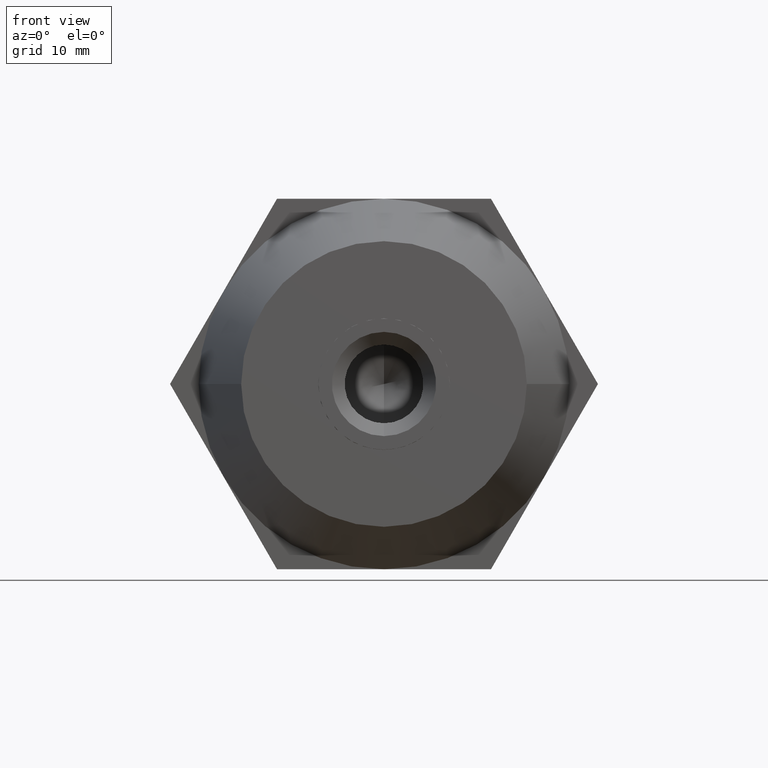
[diagram: clean part render]
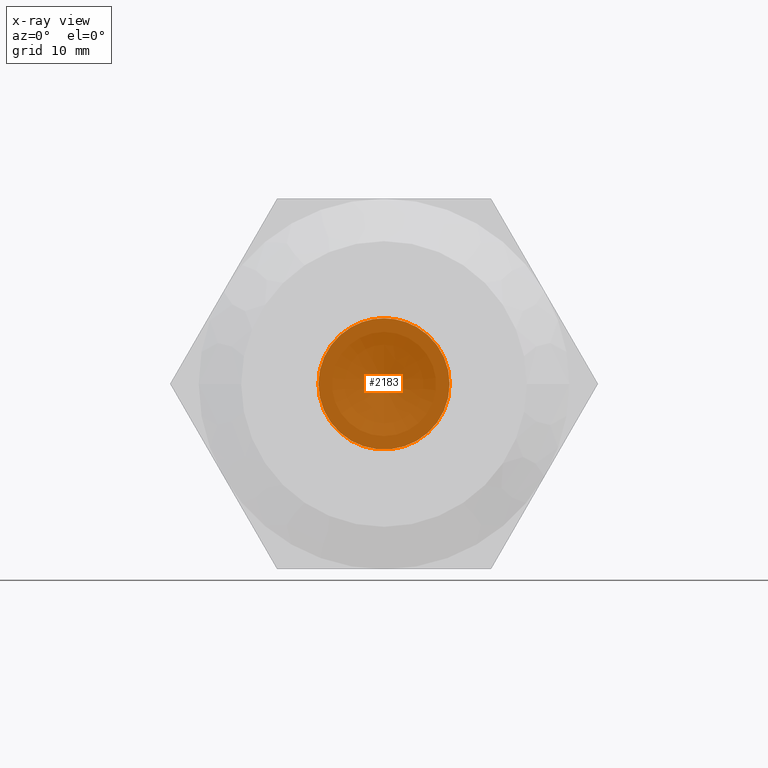
[diagram: x-ray — body ghosted, one internal face saturated and labeled with its STEP entity id]
A machine part, front view, then the same camera in x-ray: the body is ghosted and one INTERNAL B-rep face — a face not visible from any outside direction — is saturated and labeled: STEP entity #2183.
In plain terms, the highlighted planar face has unit normal (0, 1, 0).
Its self-contained STEP definition (entity closure, byte-faithful):
#3 = EDGE_CURVE ( 'NONE', #842, #3585, #1939, .T. ) ;
#88 = AXIS2_PLACEMENT_3D ( 'NONE', #3088, #1177, #666 ) ;
#100 = ORIENTED_EDGE ( 'NONE', *, *, #807, .F. ) ;
#162 = AXIS2_PLACEMENT_3D ( 'NONE', #3568, #1111, #559 ) ;
#193 = EDGE_LOOP ( 'NONE', ( #3871, #2736, #100, #368, #912, #3910, #2493 ) ) ;
#202 = EDGE_CURVE ( 'NONE', #274, #1601, #759, .T. ) ;
#274 = VERTEX_POINT ( 'NONE', #2925 ) ;
#331 = CIRCLE ( 'NONE', #2382, 8.500000000000000000 ) ;
#334 = DIRECTION ( 'NONE',  ( 0.0000000000000000000, 0.0000000000000000000, 1.000000000000000000 ) ) ;
#368 = ORIENTED_EDGE ( 'NONE', *, *, #202, .F. ) ;
#518 = CARTESIAN_POINT ( 'NONE',  ( 0.0000000000000000000, 11.00000000000000000, 0.0000000000000000000 ) ) ;
#533 = CARTESIAN_POINT ( 'NONE',  ( 0.0000000000000000000, 11.00000000000000000, 0.0000000000000000000 ) ) ;
#559 = DIRECTION ( 'NONE',  ( 1.776356839400250500E-015, 0.0000000000000000000, 1.000000000000000000 ) ) ;
#571 = CARTESIAN_POINT ( 'NONE',  ( 0.0000000000000000000, 11.00000000000000000, 8.500000000000000000 ) ) ;
#587 = AXIS2_PLACEMENT_3D ( 'NONE', #518, #2059, #3553 ) ;
#612 = VERTEX_POINT ( 'NONE', #1110 ) ;
#666 = DIRECTION ( 'NONE',  ( 0.0000000000000000000, 0.0000000000000000000, 1.000000000000000000 ) ) ;
#703 = DIRECTION ( 'NONE',  ( -0.0000000000000000000, -1.000000000000000000, -0.0000000000000000000 ) ) ;
#704 = AXIS2_PLACEMENT_3D ( 'NONE', #2748, #2139, #334 ) ;
#735 = CARTESIAN_POINT ( 'NONE',  ( 0.0000000000000000000, 11.00000000000000000, 0.0000000000000000000 ) ) ;
#759 = CIRCLE ( 'NONE', #587, 8.500000000000000000 ) ;
#807 = EDGE_CURVE ( 'NONE', #1601, #2316, #3323, .T. ) ;
#837 = AXIS2_PLACEMENT_3D ( 'NONE', #533, #3241, #2617 ) ;
#842 = VERTEX_POINT ( 'NONE', #571 ) ;
#912 = ORIENTED_EDGE ( 'NONE', *, *, #2398, .F. ) ;
#1013 = PLANE ( 'NONE',  #2813 ) ;
#1110 = CARTESIAN_POINT ( 'NONE',  ( 4.249999999999940500, 10.99999999999896100, 7.361215932167770100 ) ) ;
#1111 = DIRECTION ( 'NONE',  ( -0.0000000000000000000, -1.000000000000000000, -0.0000000000000000000 ) ) ;
#1177 = DIRECTION ( 'NONE',  ( -0.0000000000000000000, -1.000000000000000000, -0.0000000000000000000 ) ) ;
#1601 = VERTEX_POINT ( 'NONE', #2334 ) ;
#1801 = CIRCLE ( 'NONE', #2759, 8.500000000000000000 ) ;
#1939 = CIRCLE ( 'NONE', #704, 8.500000000000000000 ) ;
#1950 = CARTESIAN_POINT ( 'NONE',  ( -8.500000000000000000, 11.00000000000000000, 0.0000000000000000000 ) ) ;
#2059 = DIRECTION ( 'NONE',  ( -0.0000000000000000000, -1.000000000000000000, -0.0000000000000000000 ) ) ;
#2139 = DIRECTION ( 'NONE',  ( -0.0000000000000000000, -1.000000000000000000, -0.0000000000000000000 ) ) ;
#2183 = ADVANCED_FACE ( 'NONE', ( #2520 ), #1013, .T. ) ;
#2298 = VERTEX_POINT ( 'NONE', #1950 ) ;
#2316 = VERTEX_POINT ( 'NONE', #2868 ) ;
#2334 = CARTESIAN_POINT ( 'NONE',  ( 4.250000000000060400, 10.99999999999896100, -7.361215932167689300 ) ) ;
#2382 = AXIS2_PLACEMENT_3D ( 'NONE', #3113, #703, #3143 ) ;
#2387 = EDGE_CURVE ( 'NONE', #612, #842, #3282, .T. ) ;
#2398 = EDGE_CURVE ( 'NONE', #2298, #274, #1801, .T. ) ;
#2493 = ORIENTED_EDGE ( 'NONE', *, *, #3, .F. ) ;
#2520 = FACE_OUTER_BOUND ( 'NONE', #193, .T. ) ;
#2617 = DIRECTION ( 'NONE',  ( -1.776356839400250500E-015, 0.0000000000000000000, 1.000000000000000000 ) ) ;
#2660 = DIRECTION ( 'NONE',  ( -0.0000000000000000000, -1.000000000000000000, -0.0000000000000000000 ) ) ;
#2736 = ORIENTED_EDGE ( 'NONE', *, *, #2894, .F. ) ;
#2742 = EDGE_CURVE ( 'NONE', #3585, #2298, #3131, .T. ) ;
#2748 = CARTESIAN_POINT ( 'NONE',  ( 0.0000000000000000000, 11.00000000000000000, 0.0000000000000000000 ) ) ;
#2759 = AXIS2_PLACEMENT_3D ( 'NONE', #3541, #2660, #3859 ) ;
#2813 = AXIS2_PLACEMENT_3D ( 'NONE', #735, #2864, #3134 ) ;
#2864 = DIRECTION ( 'NONE',  ( 0.0000000000000000000, 1.000000000000000000, 0.0000000000000000000 ) ) ;
#2868 = CARTESIAN_POINT ( 'NONE',  ( 8.500000000000000000, 11.00000000000000000, -3.469446951953615000E-015 ) ) ;
#2894 = EDGE_CURVE ( 'NONE', #2316, #612, #331, .T. ) ;
#2925 = CARTESIAN_POINT ( 'NONE',  ( -4.249999999999935200, 10.99999999999896100, -7.361215932167759500 ) ) ;
#3088 = CARTESIAN_POINT ( 'NONE',  ( 0.0000000000000000000, 11.00000000000000000, 0.0000000000000000000 ) ) ;
#3113 = CARTESIAN_POINT ( 'NONE',  ( 0.0000000000000000000, 11.00000000000000000, 0.0000000000000000000 ) ) ;
#3131 = CIRCLE ( 'NONE', #88, 8.500000000000000000 ) ;
#3134 = DIRECTION ( 'NONE',  ( 0.0000000000000000000, 0.0000000000000000000, 1.000000000000000000 ) ) ;
#3143 = DIRECTION ( 'NONE',  ( 1.776356839400250500E-015, 0.0000000000000000000, 1.000000000000000000 ) ) ;
#3241 = DIRECTION ( 'NONE',  ( -0.0000000000000000000, -1.000000000000000000, -0.0000000000000000000 ) ) ;
#3282 = CIRCLE ( 'NONE', #162, 8.500000000000000000 ) ;
#3323 = CIRCLE ( 'NONE', #837, 8.500000000000000000 ) ;
#3403 = CARTESIAN_POINT ( 'NONE',  ( -4.250000000000000000, 11.00000000000000000, 7.361215932167730200 ) ) ;
#3541 = CARTESIAN_POINT ( 'NONE',  ( 0.0000000000000000000, 11.00000000000000000, 0.0000000000000000000 ) ) ;
#3553 = DIRECTION ( 'NONE',  ( 1.776356839400250500E-015, 0.0000000000000000000, 1.000000000000000000 ) ) ;
#3568 = CARTESIAN_POINT ( 'NONE',  ( 0.0000000000000000000, 11.00000000000000000, 0.0000000000000000000 ) ) ;
#3585 = VERTEX_POINT ( 'NONE', #3403 ) ;
#3859 = DIRECTION ( 'NONE',  ( 0.0000000000000000000, 0.0000000000000000000, 1.000000000000000000 ) ) ;
#3871 = ORIENTED_EDGE ( 'NONE', *, *, #2387, .F. ) ;
#3910 = ORIENTED_EDGE ( 'NONE', *, *, #2742, .F. ) ;